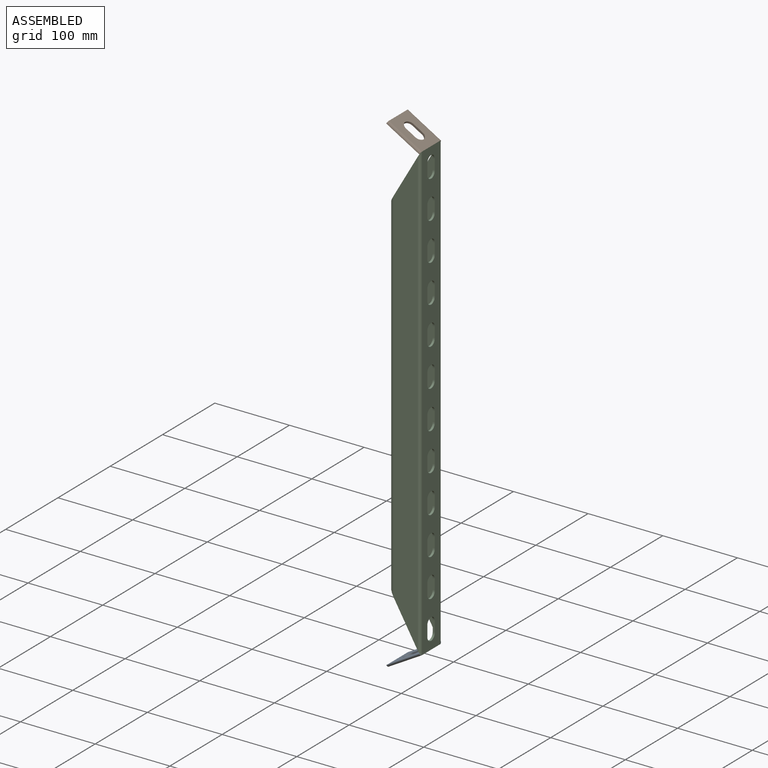
[diagram: assembled view]
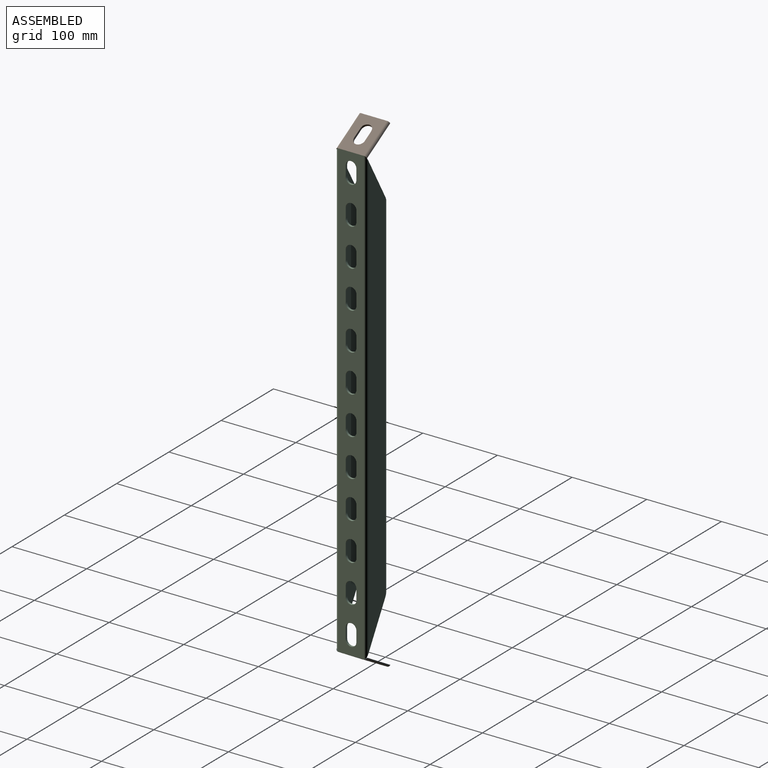
[diagram: assembled view, second angle]
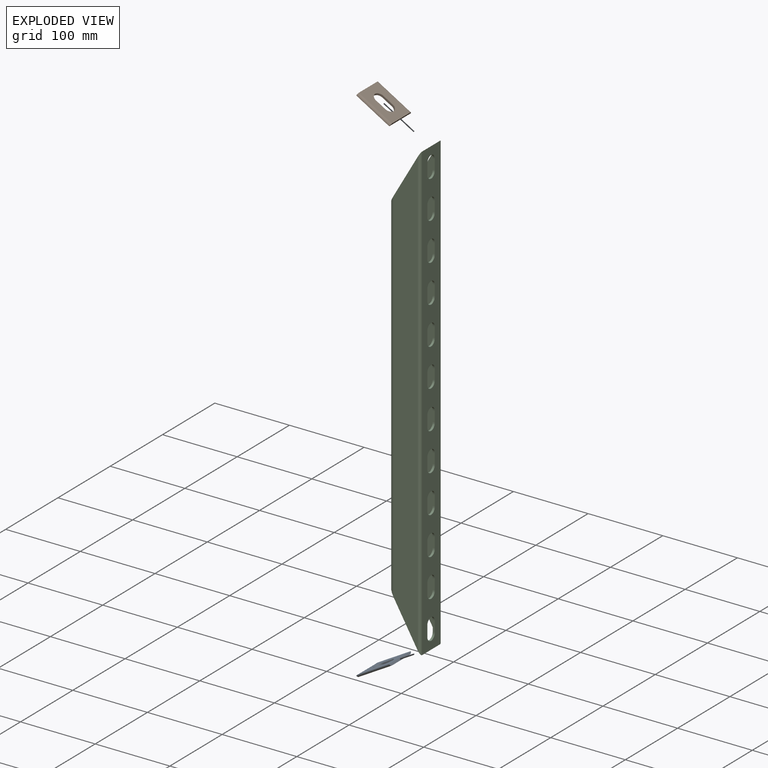
[diagram: exploded view]
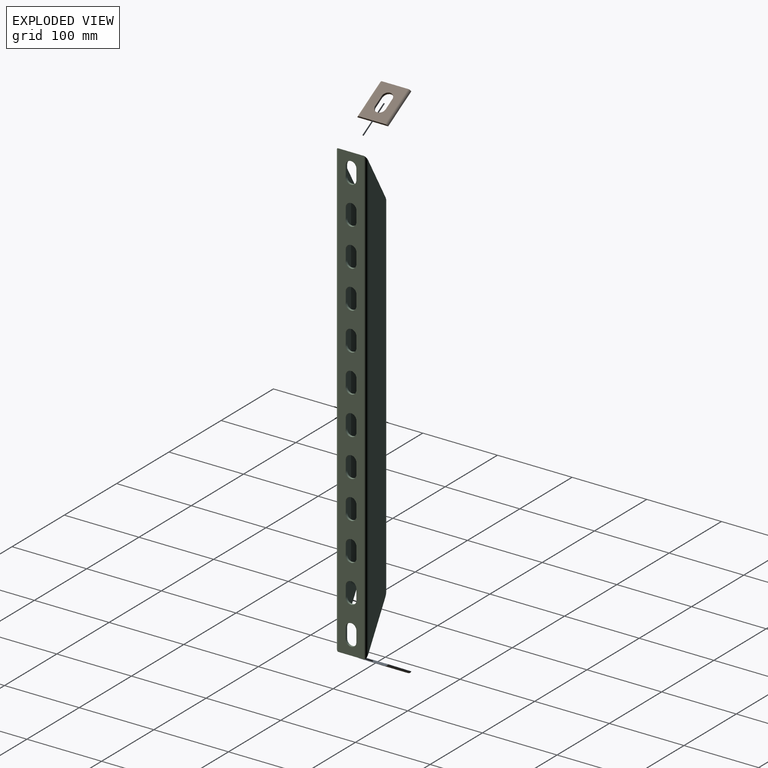
[diagram: exploded view, second angle]
ASSEMBLY  parts=3 mates=2
PART A: 14 faces, bbox 2.8x41.2x51.1 mm
  f0: plane 14.29x2.79mm, normal (0,-1,0), area 39.9mm2, adj f1,f3,f5,f8
  f1: cylinder r=7.14mm len=14.29mm, axis (1,0,0), area 62.7mm2, adj f0,f2,f5,f8
  f2: plane 14.29x2.79mm, normal (0,1,0), area 39.9mm2, adj f1,f3,f5,f8
  f3: cylinder r=7.14mm len=14.29mm, axis (1,0,0), area 62.7mm2, adj f0,f2,f5,f8
  f4: cylinder r=0.67mm len=51.07mm, axis (0,0,1), area 13.2mm2, adj f5,f10,f11,f13
  f5: plane 51.07x34.35mm, normal (-1,0,0), area 1390.1mm2, adj f0,f1,f2,f3,f4,f6,f10,f11
  f6: cylinder r=0.67mm len=51.07mm, axis (0,0,1), area 13.2mm2, adj f5,f10,f11,f12
  f7: cylinder r=3.46mm len=51.07mm, axis (0,0,1), area 246mm2, adj f8,f10,f11,f12
  f8: plane 51.07x34.35mm, normal (1,0,0), area 1390.1mm2, adj f0,f1,f2,f3,f7,f9,f10,f11
  f9: cylinder r=3.46mm len=51.07mm, axis (0,0,1), area 246mm2, adj f8,f10,f11,f13
  f10: plane 41.16x2.84mm, normal (0,0,1), area 110.5mm2, adj f4,f5,f6,f7,f8,f9,f12,f13
  f11: plane 41.16x2.84mm, normal (0,0,-1), area 110.5mm2, adj f4,f5,f6,f7,f8,f9,f12,f13
  f12: plane 51.07x3.15mm, normal (-1,0,0), area 161mm2, adj f6,f7,f10,f11
  f13: plane 51.07x3.15mm, normal (-1,0,0), area 161mm2, adj f4,f9,f10,f11
PART B: same geometry as A
PART C: 78 faces, bbox 41.3x41.3x609.6 mm
  f0: plane 597.61x32.77mm, normal (0,1,0), area 17721.8mm2, adj f16,f17,f52,f77
  f1: plane 597.61x32.77mm, normal (0,-1,0), area 17721.8mm2, adj f18,f19,f52,f77
  f2: plane 466.62x1.02mm, normal (-1,0,0), area 474.1mm2, adj f19,f20,f52,f77
  f3: plane 486.5x2.28mm, normal (0,1,0), area 1100.1mm2, adj f15,f20,f52,f77
  f4: plane 486.5x2.28mm, normal (0,-1,0), area 1100.1mm2, adj f15,f22,f52,f77
  f5: plane 476.3x1.02mm, normal (1,0,0), area 483.9mm2, adj f22,f23,f52,f77
  f6: plane 597.61x32.77mm, normal (0,1,0), area 17721.8mm2, adj f23,f24,f52,f77
  f7: plane 599.92x34.35mm, normal (-1,0,0), area 16235.9mm2, adj f24,f25,f28,f29,f30,f31,f32,f33
  f8: plane 597.61x32.77mm, normal (0,-1,0), area 17721.8mm2, adj f25,f26,f52,f77
  f9: plane 476.3x1.02mm, normal (1,0,0), area 483.9mm2, adj f26,f27,f52,f77
  f10: plane 486.5x2.28mm, normal (0,1,0), area 1100.1mm2, adj f14,f27,f52,f77
  f11: plane 486.5x2.28mm, normal (0,-1,0), area 1100.1mm2, adj f14,f21,f52,f77
  f12: plane 466.62x1.02mm, normal (-1,0,0), area 474.1mm2, adj f16,f21,f52,f77
  f13: plane 609.6x34.35mm, normal (1,0,0), area 16568.4mm2, adj f17,f18,f28,f29,f30,f31,f32,f33
  f14: cylinder r=1.4mm len=491.36mm, axis (0,0,1), area 2148.7mm2, adj f10,f11,f52,f77
  f15: cylinder r=1.4mm len=491.36mm, axis (0,0,1), area 2148.7mm2, adj f3,f4,f52,f77
  f16: cylinder r=5.05mm len=484.11mm, axis (0,0,1), area 3750.6mm2, adj f0,f12,f52,f77
  f17: cylinder r=3.46mm len=609.6mm, axis (0,0,1), area 3290.2mm2, adj f0,f13,f52,f77
  f18: cylinder r=3.46mm len=609.6mm, axis (0,0,1), area 3290.2mm2, adj f1,f13,f52,f77
  f19: cylinder r=5.05mm len=484.11mm, axis (0,0,1), area 3750.6mm2, adj f1,f2,f52,f77
  f20: cylinder r=3.46mm len=478.61mm, axis (0,0,1), area 2560.3mm2, adj f2,f3,f52,f77
  f21: cylinder r=3.46mm len=478.61mm, axis (0,0,1), area 2560.3mm2, adj f11,f12,f52,f77
  f22: cylinder r=0.67mm len=478.61mm, axis (0,0,1), area 499.7mm2, adj f4,f5,f52,f77
  f23: cylinder r=2.25mm len=484.11mm, axis (0,0,1), area 1696.6mm2, adj f5,f6,f52,f77
  f24: cylinder r=0.67mm len=599.92mm, axis (0,0,1), area 627.4mm2, adj f6,f7,f52,f77
  f25: cylinder r=0.67mm len=599.92mm, axis (0,0,1), area 627.4mm2, adj f7,f8,f52,f77
  f26: cylinder r=2.25mm len=484.11mm, axis (0,0,1), area 1696.6mm2, adj f8,f9,f52,f77
  f27: cylinder r=0.67mm len=478.61mm, axis (0,0,1), area 499.7mm2, adj f9,f10,f52,f77
  f28: cylinder r=7.14mm len=14.29mm, axis (1,0,0), area 62.7mm2, adj f7,f13,f49,f50
  f29: cylinder r=7.14mm len=14.29mm, axis (1,0,0), area 62.7mm2, adj f7,f13,f46,f47
  f30: cylinder r=7.14mm len=14.29mm, axis (1,0,0), area 62.7mm2, adj f7,f13,f43,f44
  f31: cylinder r=7.14mm len=14.29mm, axis (1,0,0), area 62.7mm2, adj f7,f13,f40,f41
  f32: cylinder r=7.14mm len=14.29mm, axis (1,0,0), area 62.7mm2, adj f7,f13,f37,f38
  f33: cylinder r=7.14mm len=14.29mm, axis (1,0,0), area 62.7mm2, adj f7,f13,f35,f36
  f34: cylinder r=7.14mm len=14.29mm, axis (1,0,0), area 62.7mm2, adj f7,f13,f35,f36
  f35: plane 14.29x2.79mm, normal (0,-1,0), area 39.9mm2, adj f7,f13,f33,f34
  f36: plane 14.29x2.79mm, normal (0,1,0), area 39.9mm2, adj f7,f13,f33,f34
  f37: plane 14.29x2.79mm, normal (0,1,0), area 39.9mm2, adj f7,f13,f32,f39
  f38: plane 14.29x2.79mm, normal (0,-1,0), area 39.9mm2, adj f7,f13,f32,f39
  f39: cylinder r=7.14mm len=14.29mm, axis (1,0,0), area 62.7mm2, adj f7,f13,f37,f38
  f40: plane 14.29x2.79mm, normal (0,1,0), area 39.9mm2, adj f7,f13,f31,f42
  f41: plane 14.29x2.79mm, normal (0,-1,0), area 39.9mm2, adj f7,f13,f31,f42
  f42: cylinder r=7.14mm len=14.29mm, axis (1,0,0), area 62.7mm2, adj f7,f13,f40,f41
  f43: plane 14.29x2.79mm, normal (0,1,0), area 39.9mm2, adj f7,f13,f30,f45
  f44: plane 14.29x2.79mm, normal (0,-1,0), area 39.9mm2, adj f7,f13,f30,f45
  f45: cylinder r=7.14mm len=14.29mm, axis (1,0,0), area 62.7mm2, adj f7,f13,f43,f44
  f46: plane 14.29x2.79mm, normal (0,1,0), area 39.9mm2, adj f7,f13,f29,f48
  f47: plane 14.29x2.79mm, normal (0,-1,0), area 39.9mm2, adj f7,f13,f29,f48
  f48: cylinder r=7.14mm len=14.29mm, axis (1,0,0), area 62.7mm2, adj f7,f13,f46,f47
  f49: plane 14.29x2.79mm, normal (0,1,0), area 39.9mm2, adj f7,f13,f28,f51
  f50: plane 14.29x2.79mm, normal (0,-1,0), area 39.9mm2, adj f7,f13,f28,f51
  f51: cylinder r=7.14mm len=14.29mm, axis (1,0,0), area 62.7mm2, adj f7,f13,f49,f50
  f52: plane 71.49x41.28mm, normal (-0.87,0,0.5), area 743.8mm2, adj f0,f1,f2,f3,f4,f5,f6,f7
  f53: cylinder r=7.14mm len=14.29mm, axis (1,0,0), area 62.7mm2, adj f7,f13,f74,f75
  f54: cylinder r=7.14mm len=14.29mm, axis (1,0,0), area 62.7mm2, adj f7,f13,f71,f72
  f55: cylinder r=7.14mm len=14.29mm, axis (1,0,0), area 62.7mm2, adj f7,f13,f68,f69
  f56: cylinder r=7.14mm len=14.29mm, axis (1,0,0), area 62.7mm2, adj f7,f13,f65,f66
  f57: cylinder r=7.14mm len=14.29mm, axis (1,0,0), area 62.7mm2, adj f7,f13,f62,f63
  f58: cylinder r=7.14mm len=14.29mm, axis (1,0,0), area 62.7mm2, adj f7,f13,f60,f61
  f59: cylinder r=7.14mm len=14.29mm, axis (1,0,0), area 62.7mm2, adj f7,f13,f60,f61
  f60: plane 14.29x2.79mm, normal (0,-1,0), area 39.9mm2, adj f7,f13,f58,f59
  f61: plane 14.29x2.79mm, normal (0,1,0), area 39.9mm2, adj f7,f13,f58,f59
  f62: plane 14.29x2.79mm, normal (0,1,0), area 39.9mm2, adj f7,f13,f57,f64
  f63: plane 14.29x2.79mm, normal (0,-1,0), area 39.9mm2, adj f7,f13,f57,f64
  f64: cylinder r=7.14mm len=14.29mm, axis (1,0,0), area 62.7mm2, adj f7,f13,f62,f63
  f65: plane 14.29x2.79mm, normal (0,1,0), area 39.9mm2, adj f7,f13,f56,f67
  f66: plane 14.29x2.79mm, normal (0,-1,0), area 39.9mm2, adj f7,f13,f56,f67
  f67: cylinder r=7.14mm len=14.29mm, axis (1,0,0), area 62.7mm2, adj f7,f13,f65,f66
  f68: plane 14.29x2.79mm, normal (0,1,0), area 39.9mm2, adj f7,f13,f55,f70
  f69: plane 14.29x2.79mm, normal (0,-1,0), area 39.9mm2, adj f7,f13,f55,f70
  f70: cylinder r=7.14mm len=14.29mm, axis (1,0,0), area 62.7mm2, adj f7,f13,f68,f69
  f71: plane 14.29x2.79mm, normal (0,1,0), area 39.9mm2, adj f7,f13,f54,f73
  f72: plane 14.29x2.79mm, normal (0,-1,0), area 39.9mm2, adj f7,f13,f54,f73
  f73: cylinder r=7.14mm len=14.29mm, axis (1,0,0), area 62.7mm2, adj f7,f13,f71,f72
  f74: plane 14.29x2.79mm, normal (0,1,0), area 39.9mm2, adj f7,f13,f53,f76
  f75: plane 14.29x2.79mm, normal (0,-1,0), area 39.9mm2, adj f7,f13,f53,f76
  f76: cylinder r=7.14mm len=14.29mm, axis (1,0,0), area 62.7mm2, adj f7,f13,f74,f75
  f77: plane 71.49x41.28mm, normal (-0.87,0,-0.5), area 743.8mm2, adj f0,f1,f2,f3,f4,f5,f6,f7
PLACE A rot(axis=(0.87,0,-0.5),180deg) t=(-181.87,-32.19,-526.38)mm
PLACE B rot(axis=(0,-1,0),60deg) t=(-181.87,-32.19,134.29)mm
PLACE C t=(-137.64,-32.19,159.83)mm
MATE fastened A.f11 <-> C.f77  axis (0.87,0,0.5) through (-137.64,-32.19,-500.84)mm
MATE fastened B.f11 <-> C.f52  axis (0.87,0,-0.5) through (-137.64,-32.19,108.76)mm
